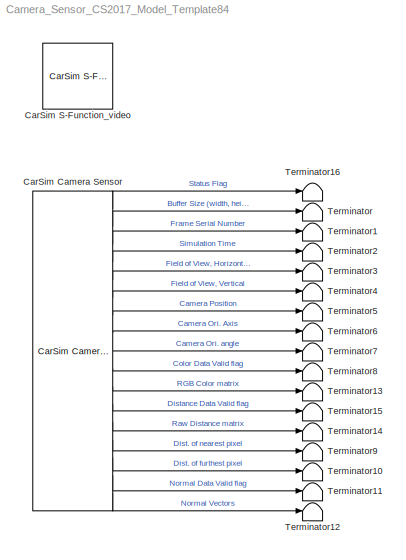
MODEL Camera_Sensor_CS2017_Model_Template84
KIND model
BLOCK [Reference] CarSim Camera Sensor  REF=Solver_SF/CarSim Camera Sensor
  Ports = [0, 17]
  Priority = 1
  SID = 222
  SourceBlock = Solver_SF/CarSim Camera Sensor
BLOCK [Reference] CarSim S-Function_video  REF=Solver_SF/CarSim S-Function_video
  AttributesFormatString = Vehicle Code: %<VehicleCode>
  Ports = []
  Priority = 1
  SID = 44
  SIMFILE = simfile.sim
  SourceBlock = Solver_SF/CarSim S-Function_video
  SourceType = Vehicle math model library
  VehicleCode = i_i
BLOCK [Terminator] Terminator
  SID = 191
BLOCK [Terminator] Terminator1
  SID = 192
BLOCK [Terminator] Terminator10
  SID = 201
BLOCK [Terminator] Terminator11
  SID = 202
BLOCK [Terminator] Terminator12
  SID = 216
BLOCK [Terminator] Terminator13
  SID = 217
BLOCK [Terminator] Terminator14
  SID = 218
BLOCK [Terminator] Terminator15
  SID = 219
BLOCK [Terminator] Terminator16
  SID = 221
BLOCK [Terminator] Terminator2
  SID = 193
BLOCK [Terminator] Terminator3
  SID = 194
BLOCK [Terminator] Terminator4
  SID = 195
BLOCK [Terminator] Terminator5
  SID = 196
BLOCK [Terminator] Terminator6
  SID = 197
BLOCK [Terminator] Terminator7
  SID = 198
BLOCK [Terminator] Terminator8
  SID = 199
BLOCK [Terminator] Terminator9
  SID = 200
LINE CarSim Camera Sensor:1 -> Terminator16:1
LINE CarSim Camera Sensor:10 -> Terminator8:1
LINE CarSim Camera Sensor:11 -> Terminator13:1
LINE CarSim Camera Sensor:12 -> Terminator15:1
LINE CarSim Camera Sensor:13 -> Terminator14:1
LINE CarSim Camera Sensor:14 -> Terminator9:1
LINE CarSim Camera Sensor:15 -> Terminator10:1
LINE CarSim Camera Sensor:16 -> Terminator11:1
LINE CarSim Camera Sensor:17 -> Terminator12:1
LINE CarSim Camera Sensor:2 -> Terminator:1
LINE CarSim Camera Sensor:3 -> Terminator1:1
LINE CarSim Camera Sensor:4 -> Terminator2:1
LINE CarSim Camera Sensor:5 -> Terminator3:1
LINE CarSim Camera Sensor:6 -> Terminator4:1
LINE CarSim Camera Sensor:7 -> Terminator5:1
LINE CarSim Camera Sensor:8 -> Terminator6:1
LINE CarSim Camera Sensor:9 -> Terminator7:1
